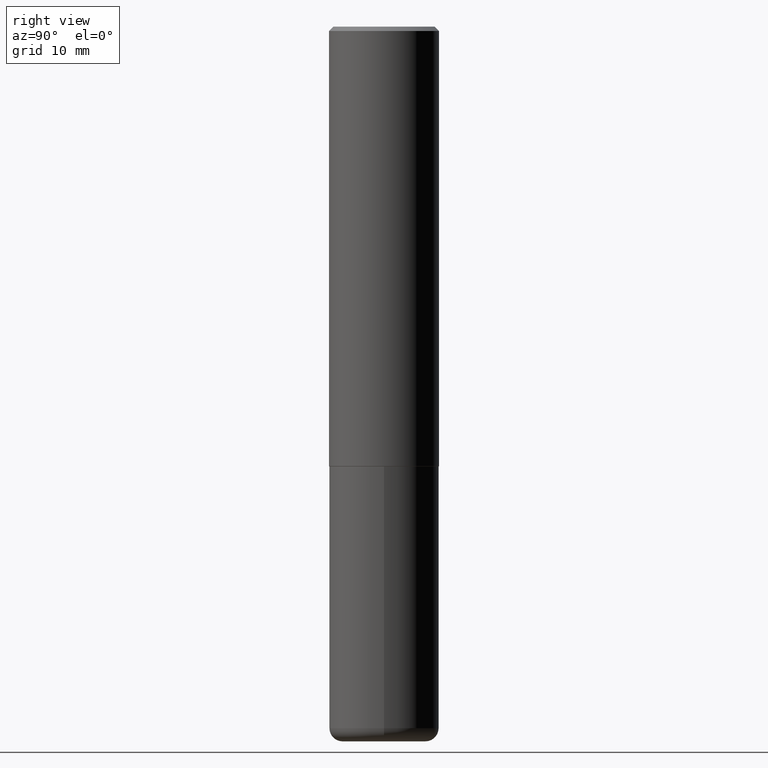
[diagram: clean part render]
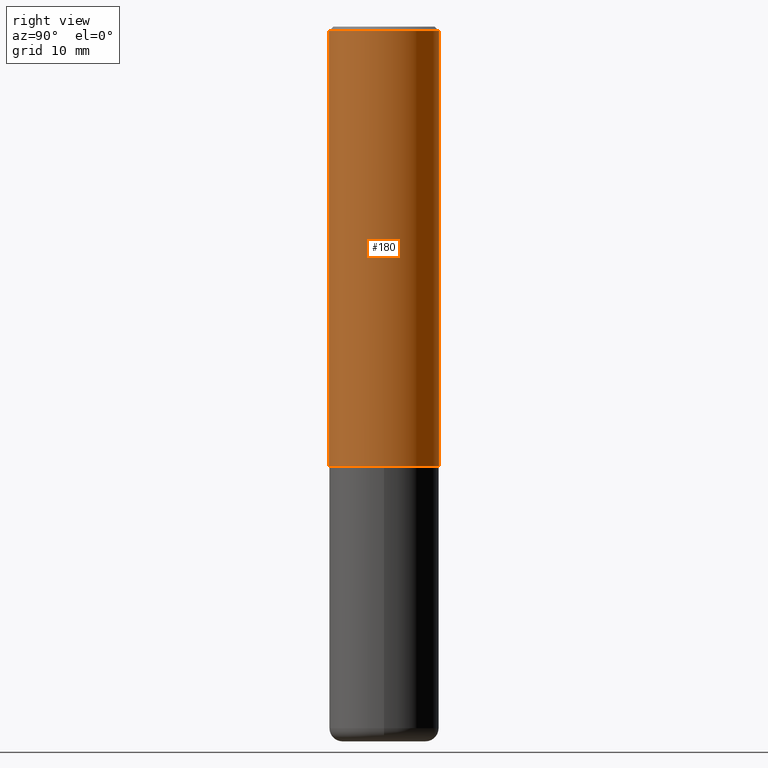
[diagram: same view with one face highlighted and labeled with its STEP entity id]
A machine part, right view. The second image highlights one B-rep face of the part: STEP entity #180.
In plain terms, the highlighted cylindrical surface (partial cylindrical patch) has radius 6.35 mm, axis along (-0, 0, 1).
Its self-contained STEP definition (entity closure, byte-faithful):
#21 = DIRECTION ( 'NONE',  ( -6.982962677686265922E-15, -1.000000000000000000, 3.278217592397112312E-15 ) ) ;
#22 = AXIS2_PLACEMENT_3D ( 'NONE', #237, #174, #21 ) ;
#26 = CARTESIAN_POINT ( 'NONE',  ( -1.745740669421519543E-15, -0.2500000000000072720, -1.998999999999999000 ) ) ;
#41 = EDGE_CURVE ( 'NONE', #226, #139, #394, .T. ) ;
#49 = CARTESIAN_POINT ( 'NONE',  ( 0.000000000000000000, 0.000000000000000000, 0.000000000000000000 ) ) ;
#80 = AXIS2_PLACEMENT_3D ( 'NONE', #49, #173, #404 ) ;
#89 = CARTESIAN_POINT ( 'NONE',  ( 1.745740669421567269E-15, 0.2499999999999999722, -0.02000000000000096492 ) ) ;
#98 = ORIENTED_EDGE ( 'NONE', *, *, #372, .F. ) ;
#116 = EDGE_CURVE ( 'NONE', #139, #126, #171, .T. ) ;
#118 = CARTESIAN_POINT ( 'NONE',  ( 1.776356839400251254E-15, 0.2500000000000001110, -8.733679081896635319E-16 ) ) ;
#122 = DIRECTION ( 'NONE',  ( -2.444078991372175563E-29, 3.493471632758652550E-15, 1.000000000000000000 ) ) ;
#126 = VERTEX_POINT ( 'NONE', #89 ) ;
#132 = DIRECTION ( 'NONE',  ( -2.444078991372175563E-29, 3.493471632758652550E-15, 1.000000000000000000 ) ) ;
#136 = DIRECTION ( 'NONE',  ( -2.444078991372175563E-29, 3.493471632758652550E-15, 1.000000000000000000 ) ) ;
#137 = VERTEX_POINT ( 'NONE', #306 ) ;
#139 = VERTEX_POINT ( 'NONE', #214 ) ;
#160 = EDGE_LOOP ( 'NONE', ( #285, #266, #313, #98 ) ) ;
#161 = CARTESIAN_POINT ( 'NONE',  ( 4.888157982744373443E-31, -6.986943265517335816E-17, -0.02000000000000009062 ) ) ;
#171 = LINE ( 'NONE', #118, #321 ) ;
#173 = DIRECTION ( 'NONE',  ( -2.444078991372175563E-29, 3.493471632758652550E-15, 1.000000000000000000 ) ) ;
#174 = DIRECTION ( 'NONE',  ( -2.444078991372175563E-29, 3.493471632758652550E-15, 1.000000000000000000 ) ) ;
#178 = CIRCLE ( 'NONE', #228, 0.2500000000000000555 ) ;
#180 = ADVANCED_FACE ( 'NONE', ( #207 ), #341, .T. ) ;
#207 = FACE_OUTER_BOUND ( 'NONE', #160, .T. ) ;
#214 = CARTESIAN_POINT ( 'NONE',  ( 1.776356839400276103E-15, 0.2499999999999932832, -1.999000000000000776 ) ) ;
#226 = VERTEX_POINT ( 'NONE', #26 ) ;
#228 = AXIS2_PLACEMENT_3D ( 'NONE', #161, #136, #264 ) ;
#237 = CARTESIAN_POINT ( 'NONE',  ( 4.885713903752978284E-29, -6.983449793884546288E-15, -1.998999999999999888 ) ) ;
#264 = DIRECTION ( 'NONE',  ( -6.982962677686265133E-15, -1.000000000000000000, 3.500180241882336472E-15 ) ) ;
#266 = ORIENTED_EDGE ( 'NONE', *, *, #116, .T. ) ;
#276 = VECTOR ( 'NONE', #132, 39.37007874015748143 ) ;
#285 = ORIENTED_EDGE ( 'NONE', *, *, #41, .T. ) ;
#293 = LINE ( 'NONE', #331, #276 ) ;
#306 = CARTESIAN_POINT ( 'NONE',  ( -1.715124499442882496E-15, -0.2500000000000001110, -0.01999999999999921632 ) ) ;
#313 = ORIENTED_EDGE ( 'NONE', *, *, #393, .F. ) ;
#321 = VECTOR ( 'NONE', #122, 39.37007874015748143 ) ;
#331 = CARTESIAN_POINT ( 'NONE',  ( -1.745740669421567467E-15, -0.2500000000000001110, 8.733679081896635319E-16 ) ) ;
#341 = CYLINDRICAL_SURFACE ( 'NONE', #80, 0.2500000000000001110 ) ;
#372 = EDGE_CURVE ( 'NONE', #226, #137, #293, .T. ) ;
#393 = EDGE_CURVE ( 'NONE', #137, #126, #178, .T. ) ;
#394 = CIRCLE ( 'NONE', #22, 0.2500000000000002776 ) ;
#404 = DIRECTION ( 'NONE',  ( -6.982962677686266711E-15, -1.000000000000000000, 3.493471632758652550E-15 ) ) ;